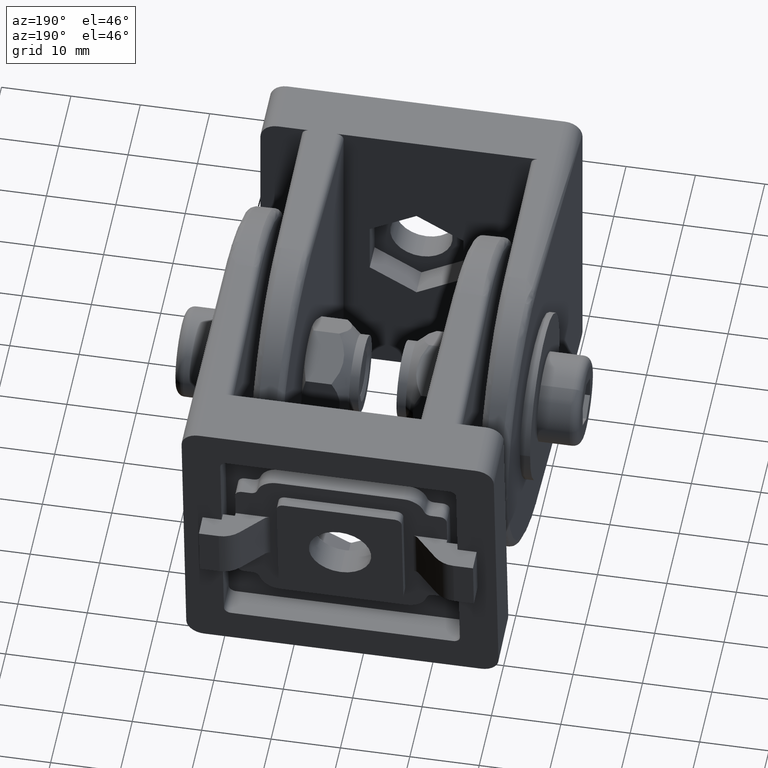
[diagram: clean part render]
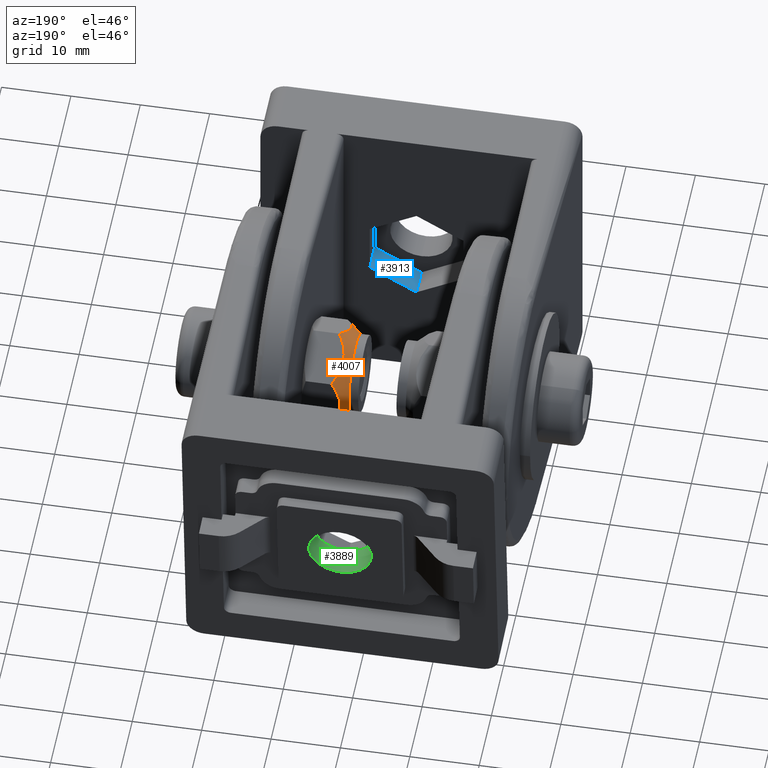
[diagram: same view with three faces highlighted in distinct colors, each labeled with its STEP entity id]
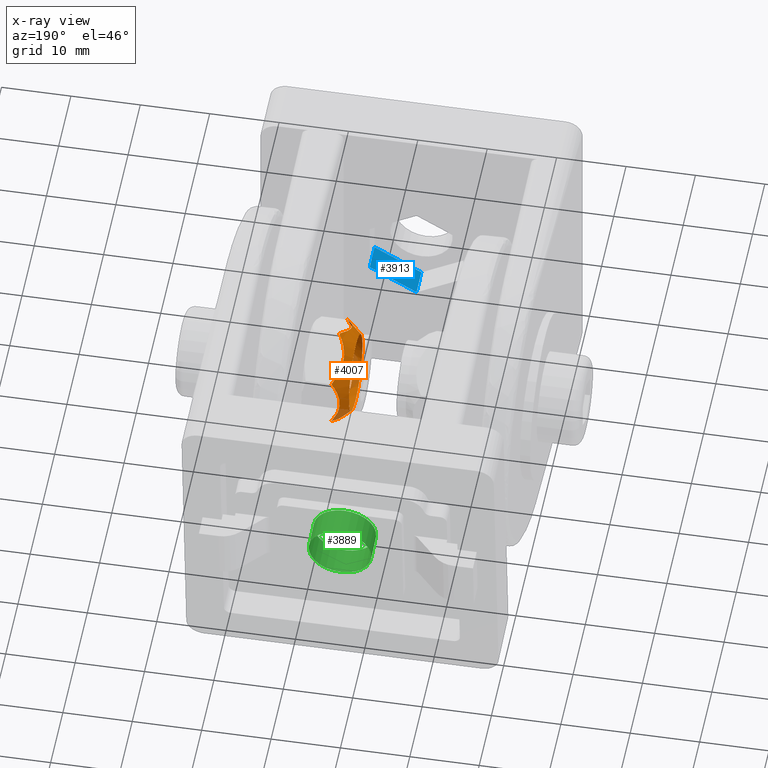
[diagram: x-ray of the same camera — body ghosted, the three highlighted faces saturated]
A machine part, auxiliary view with three faces highlighted in distinct colors.
The next image is the same camera in x-ray (body ghosted, the three faces saturated) — at least one of them is partly hidden behind the body in this view.
Their STEP definitions:

[orange] entity #4007 — the highlighted conical surface has half-angle 40 deg.
#921=CONICAL_SURFACE('',#4333,6.51527674973257,40.);
#949=FACE_BOUND('',#1398,.T.);
#1150=FACE_OUTER_BOUND('',#1397,.T.);
#1397=EDGE_LOOP('',(#3329,#3330,#3331,#3332,#3333,#3334));
#1398=EDGE_LOOP('',(#3335));
#1539=(
BOUNDED_CURVE()
B_SPLINE_CURVE(2,(#7213,#7214,#7215),.UNSPECIFIED.,.F.,.F.)
B_SPLINE_CURVE_WITH_KNOTS((3,3),(0.,0.787894124181967),.UNSPECIFIED.)
CURVE()
GEOMETRIC_REPRESENTATION_ITEM()
RATIONAL_B_SPLINE_CURVE((1.,1.15470053837925,1.))
REPRESENTATION_ITEM('')
);
#1540=(
BOUNDED_CURVE()
B_SPLINE_CURVE(2,(#7217,#7218,#7219),.UNSPECIFIED.,.F.,.F.)
B_SPLINE_CURVE_WITH_KNOTS((3,3),(0.,0.787894124181967),.UNSPECIFIED.)
CURVE()
GEOMETRIC_REPRESENTATION_ITEM()
RATIONAL_B_SPLINE_CURVE((1.,1.15470053837925,1.))
REPRESENTATION_ITEM('')
);
#1541=(
BOUNDED_CURVE()
B_SPLINE_CURVE(2,(#7221,#7222,#7223),.UNSPECIFIED.,.F.,.F.)
B_SPLINE_CURVE_WITH_KNOTS((3,3),(0.,0.787894124181967),.UNSPECIFIED.)
CURVE()
GEOMETRIC_REPRESENTATION_ITEM()
RATIONAL_B_SPLINE_CURVE((1.,1.15470053837925,1.))
REPRESENTATION_ITEM('')
);
#1542=(
BOUNDED_CURVE()
B_SPLINE_CURVE(2,(#7225,#7226,#7227),.UNSPECIFIED.,.F.,.F.)
B_SPLINE_CURVE_WITH_KNOTS((3,3),(0.,0.787894124181967),.UNSPECIFIED.)
CURVE()
GEOMETRIC_REPRESENTATION_ITEM()
RATIONAL_B_SPLINE_CURVE((1.,1.15470053837925,1.))
REPRESENTATION_ITEM('')
);
#1543=(
BOUNDED_CURVE()
B_SPLINE_CURVE(2,(#7229,#7230,#7231),.UNSPECIFIED.,.F.,.F.)
B_SPLINE_CURVE_WITH_KNOTS((3,3),(0.,0.787894124181965),.UNSPECIFIED.)
CURVE()
GEOMETRIC_REPRESENTATION_ITEM()
RATIONAL_B_SPLINE_CURVE((1.,1.15470053837925,1.))
REPRESENTATION_ITEM('')
);
#1544=(
BOUNDED_CURVE()
B_SPLINE_CURVE(2,(#7232,#7233,#7234),.UNSPECIFIED.,.F.,.F.)
B_SPLINE_CURVE_WITH_KNOTS((3,3),(0.,0.787894124181966),.UNSPECIFIED.)
CURVE()
GEOMETRIC_REPRESENTATION_ITEM()
RATIONAL_B_SPLINE_CURVE((1.,1.15470053837925,1.))
REPRESENTATION_ITEM('')
);
#1661=CIRCLE('',#4332,5.525);
#1959=VERTEX_POINT('',#7208);
#1960=VERTEX_POINT('',#7211);
#1961=VERTEX_POINT('',#7212);
#1962=VERTEX_POINT('',#7216);
#1963=VERTEX_POINT('',#7220);
#1964=VERTEX_POINT('',#7224);
#1965=VERTEX_POINT('',#7228);
#2453=EDGE_CURVE('',#1959,#1959,#1661,.T.);
#2454=EDGE_CURVE('',#1960,#1961,#1539,.T.);
#2455=EDGE_CURVE('',#1962,#1960,#1540,.T.);
#2456=EDGE_CURVE('',#1963,#1962,#1541,.T.);
#2457=EDGE_CURVE('',#1964,#1963,#1542,.T.);
#2458=EDGE_CURVE('',#1965,#1964,#1543,.T.);
#2459=EDGE_CURVE('',#1961,#1965,#1544,.T.);
#3329=ORIENTED_EDGE('',*,*,#2454,.F.);
#3330=ORIENTED_EDGE('',*,*,#2455,.F.);
#3331=ORIENTED_EDGE('',*,*,#2456,.F.);
#3332=ORIENTED_EDGE('',*,*,#2457,.F.);
#3333=ORIENTED_EDGE('',*,*,#2458,.F.);
#3334=ORIENTED_EDGE('',*,*,#2459,.F.);
#3335=ORIENTED_EDGE('',*,*,#2453,.T.);
#4007=ADVANCED_FACE('',(#1150,#949),#921,.T.);
#4332=AXIS2_PLACEMENT_3D('',#7209,#5110,#5111);
#4333=AXIS2_PLACEMENT_3D('',#7210,#5112,#5113);
#5110=DIRECTION('center_axis',(-1.,0.,0.));
#5111=DIRECTION('ref_axis',(7.39841163796765E-17,1.,0.));
#5112=DIRECTION('center_axis',(-1.,0.,0.));
#5113=DIRECTION('ref_axis',(7.39841163796765E-17,1.,0.));
#7208=CARTESIAN_POINT('',(6.66033174831261,5.525,0.));
#7209=CARTESIAN_POINT('Origin',(6.66033174831261,0.,0.));
#7210=CARTESIAN_POINT('Origin',(5.48016587415631,0.,0.));
#7211=CARTESIAN_POINT('',(4.3,3.75277674973257,6.5));
#7212=CARTESIAN_POINT('',(4.3,7.50555349946513,0.));
#7213=CARTESIAN_POINT('Ctrl Pts',(4.3,3.75277674973256,6.5));
#7214=CARTESIAN_POINT('Ctrl Pts',(6.53619258684891,5.62916512459885,3.25));
#7215=CARTESIAN_POINT('Ctrl Pts',(4.3,7.50555349946514,-6.39484601172479E-16));
#7216=CARTESIAN_POINT('',(4.3,-3.75277674973257,6.5));
#7217=CARTESIAN_POINT('Ctrl Pts',(4.3,-3.75277674973257,6.5));
#7218=CARTESIAN_POINT('Ctrl Pts',(6.53619258684891,-1.94289029309402E-15,
6.5));
#7219=CARTESIAN_POINT('Ctrl Pts',(4.3,3.75277674973257,6.5));
#7220=CARTESIAN_POINT('',(4.3,-7.50555349946514,5.55111512312578E-16));
#7221=CARTESIAN_POINT('Ctrl Pts',(4.3,-7.50555349946514,-3.19742300586239E-15));
#7222=CARTESIAN_POINT('Ctrl Pts',(6.53619258684891,-5.62916512459885,3.25));
#7223=CARTESIAN_POINT('Ctrl Pts',(4.3,-3.75277674973256,6.5));
#7224=CARTESIAN_POINT('',(4.3,-3.75277674973255,-6.50000000000001));
#7225=CARTESIAN_POINT('Ctrl Pts',(4.3,-3.75277674973256,-6.5));
#7226=CARTESIAN_POINT('Ctrl Pts',(6.53619258684891,-5.62916512459885,-3.25));
#7227=CARTESIAN_POINT('Ctrl Pts',(4.3,-7.50555349946514,3.19742300586239E-15));
#7228=CARTESIAN_POINT('',(4.3,3.75277674973257,-6.5));
#7229=CARTESIAN_POINT('Ctrl Pts',(4.3,3.75277674973257,-6.5));
#7230=CARTESIAN_POINT('Ctrl Pts',(6.5361925868489,8.56947380968462E-15,
-6.5));
#7231=CARTESIAN_POINT('Ctrl Pts',(4.3,-3.75277674973256,-6.50000000000001));
#7232=CARTESIAN_POINT('Ctrl Pts',(4.3,7.50555349946514,3.19742300586239E-15));
#7233=CARTESIAN_POINT('Ctrl Pts',(6.5361925868489,5.62916512459886,-3.25));
#7234=CARTESIAN_POINT('Ctrl Pts',(4.3,3.75277674973258,-6.5));

[blue] entity #3913 — the highlighted planar face has unit normal (0.5, 0, -0.866).
#126=LINE('',#6145,#466);
#159=LINE('',#6230,#499);
#165=LINE('',#6241,#505);
#166=LINE('',#6242,#506);
#466=VECTOR('',#4633,7.79422863405995);
#499=VECTOR('',#4712,7.79422863405995);
#505=VECTOR('',#4720,4.);
#506=VECTOR('',#4721,4.);
#787=PLANE('',#4186);
#1056=FACE_OUTER_BOUND('',#1295,.T.);
#1295=EDGE_LOOP('',(#2891,#2892,#2893,#2894));
#1814=VERTEX_POINT('',#6141);
#1816=VERTEX_POINT('',#6144);
#1844=VERTEX_POINT('',#6228);
#1845=VERTEX_POINT('',#6229);
#2221=EDGE_CURVE('',#1816,#1814,#126,.T.);
#2266=EDGE_CURVE('',#1844,#1845,#159,.T.);
#2272=EDGE_CURVE('',#1845,#1814,#165,.T.);
#2273=EDGE_CURVE('',#1844,#1816,#166,.T.);
#2891=ORIENTED_EDGE('',*,*,#2221,.T.);
#2892=ORIENTED_EDGE('',*,*,#2272,.F.);
#2893=ORIENTED_EDGE('',*,*,#2266,.F.);
#2894=ORIENTED_EDGE('',*,*,#2273,.T.);
#3913=ADVANCED_FACE('',(#1056),#787,.F.);
#4186=AXIS2_PLACEMENT_3D('',#6240,#4718,#4719);
#4633=DIRECTION('',(-0.866025403784439,-2.22565125738838E-16,-0.499999999999999));
#4712=DIRECTION('',(-0.866025403784439,-2.22565125738838E-16,-0.499999999999999));
#4718=DIRECTION('center_axis',(0.499999999999999,9.63735264431558E-17,-0.866025403784439));
#4719=DIRECTION('ref_axis',(-0.866025403784439,0.,-0.5));
#4720=DIRECTION('',(-1.92747052886312E-16,1.,0.));
#4721=DIRECTION('',(-1.92747052886312E-16,1.,0.));
#6141=CARTESIAN_POINT('',(-8.67361737988404E-16,8.,14.7057713659401));
#6144=CARTESIAN_POINT('',(6.75,8.,18.60288568297));
#6145=CARTESIAN_POINT('',(6.75,8.,18.60288568297));
#6228=CARTESIAN_POINT('',(6.75,4.,18.60288568297));
#6229=CARTESIAN_POINT('',(-7.70988211545247E-16,4.,14.7057713659401));
#6230=CARTESIAN_POINT('',(6.75,4.,18.60288568297));
#6240=CARTESIAN_POINT('Origin',(6.75,4.,18.60288568297));
#6241=CARTESIAN_POINT('',(-7.70988211545247E-16,4.,14.7057713659401));
#6242=CARTESIAN_POINT('',(6.75,4.,18.60288568297));

[green] entity #3889 — the highlighted cylindrical surface (bore or boss wall) has radius 4.5 mm, axis along (-0, 0.9954, -0.0957).
#932=FACE_BOUND('',#1263,.T.);
#980=CYLINDRICAL_SURFACE('',#4129,4.5);
#1032=FACE_OUTER_BOUND('',#1262,.T.);
#1262=EDGE_LOOP('',(#2725));
#1263=EDGE_LOOP('',(#2726));
#1572=CIRCLE('',#4130,4.5);
#1573=CIRCLE('',#4131,4.5);
#1758=VERTEX_POINT('',#5734);
#1759=VERTEX_POINT('',#5736);
#2146=EDGE_CURVE('',#1758,#1758,#1572,.T.);
#2147=EDGE_CURVE('',#1759,#1759,#1573,.T.);
#2725=ORIENTED_EDGE('',*,*,#2146,.F.);
#2726=ORIENTED_EDGE('',*,*,#2147,.T.);
#3889=ADVANCED_FACE('',(#1032,#932),#980,.F.);
#4129=AXIS2_PLACEMENT_3D('',#5733,#4526,#4527);
#4130=AXIS2_PLACEMENT_3D('',#5735,#4528,#4529);
#4131=AXIS2_PLACEMENT_3D('',#5737,#4530,#4531);
#4526=DIRECTION('center_axis',(0.,-1.,0.));
#4527=DIRECTION('ref_axis',(0.,0.,-1.));
#4528=DIRECTION('center_axis',(2.56996070515083E-16,-1.,-2.56190093990169E-31));
#4529=DIRECTION('ref_axis',(-1.,-2.56996070515083E-16,-1.64599618650908E-47));
#4530=DIRECTION('center_axis',(0.,-1.,0.));
#4531=DIRECTION('ref_axis',(0.,0.,-1.));
#5733=CARTESIAN_POINT('Origin',(2.75545529808154E-15,54.,22.5));
#5734=CARTESIAN_POINT('',(2.75545529808154E-15,4.,18.));
#5735=CARTESIAN_POINT('Origin',(2.75545529808154E-15,4.,22.5));
#5736=CARTESIAN_POINT('',(2.75545529808154E-15,0.,18.));
#5737=CARTESIAN_POINT('Origin',(2.75545529808154E-15,0.,22.5));